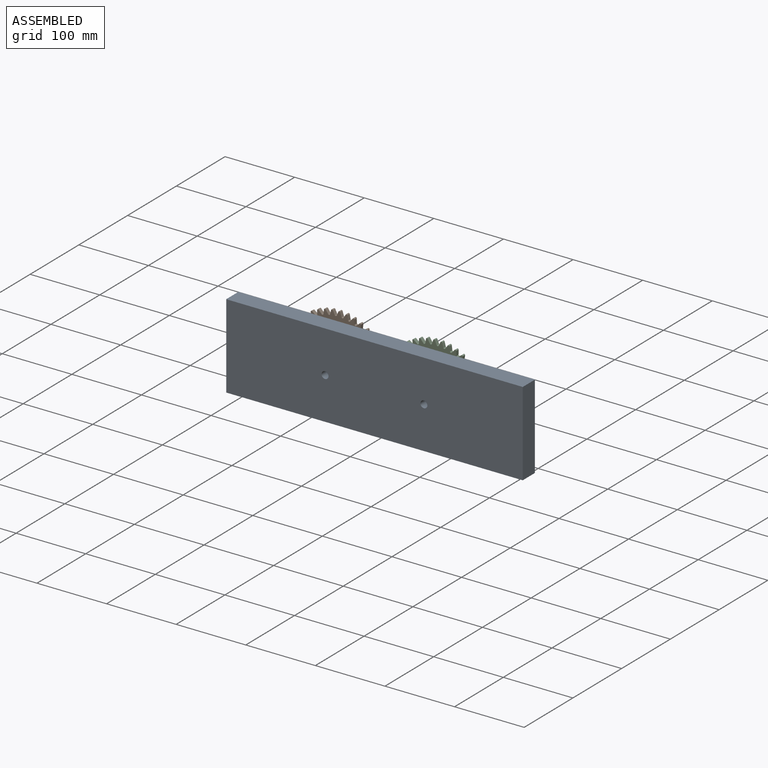
[diagram: assembled view]
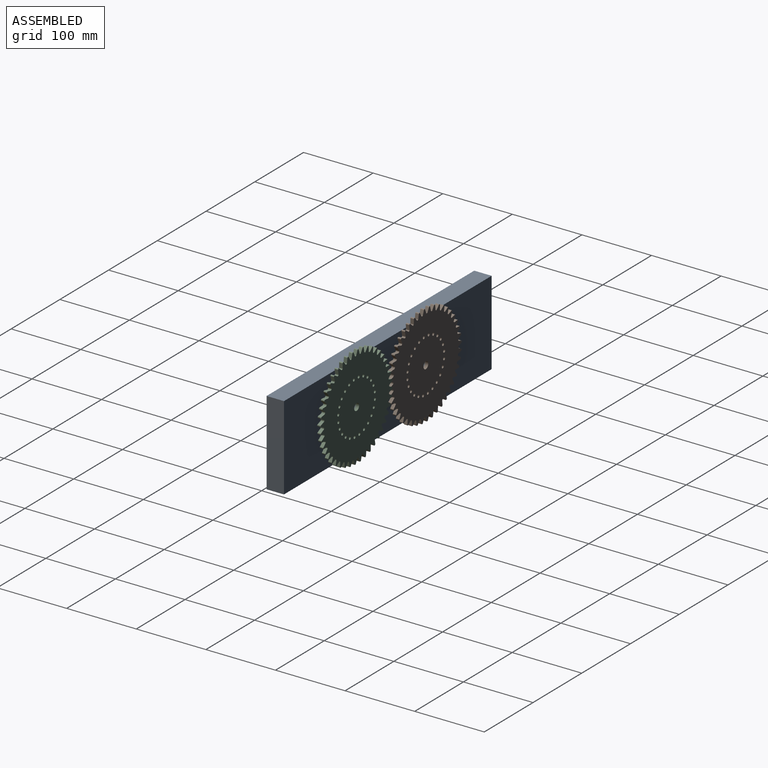
[diagram: assembled view, second angle]
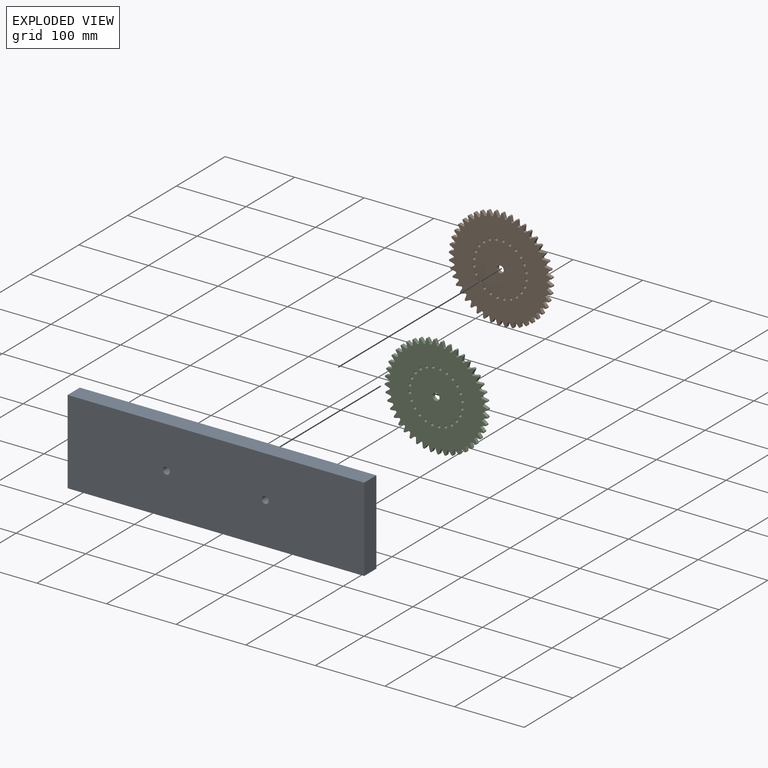
[diagram: exploded view]
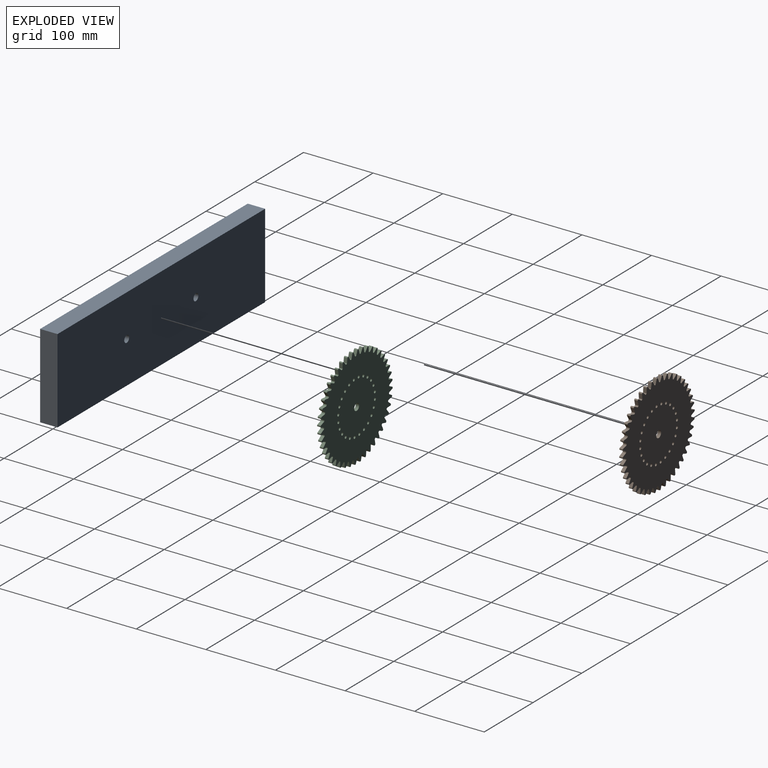
[diagram: exploded view, second angle]
ASSEMBLY  parts=3 mates=2
PART A: 8 faces, bbox 426.1x25x121.2 mm
  f0: plane 426.07x25mm, normal (0,0,1), area 10651.8mm2, adj f1,f5,f6,f7
  f1: plane 121.21x25mm, normal (-1,0,0), area 3030.3mm2, adj f0,f2,f6,f7
  f2: plane 426.07x25mm, normal (0,0,-1), area 10651.8mm2, adj f1,f5,f6,f7
  f3: cylinder r=5mm len=25mm, axis (0,1,0), area 785.4mm2, adj f6,f7
  f4: cylinder r=5mm len=25mm, axis (0,1,0), area 785.4mm2, adj f6,f7
  f5: plane 121.21x25mm, normal (1,0,0), area 3030.3mm2, adj f0,f2,f6,f7
  f6: plane 426.07x121.21mm, normal (0,-1,0), area 51487.1mm2, adj f0,f1,f2,f3,f4,f5
  f7: plane 426.07x121.21mm, normal (0,1,0), area 51487.1mm2, adj f0,f1,f2,f3,f4,f5
PART B: 379 faces, bbox 5x147.6x147.6 mm
  f0: cylinder r=1mm len=5mm, axis (1,0,0), area 6mm2, adj f1,f9,f90,f91
  f1: plane 147.55x147.55mm, normal (1,0,0), area 15120.7mm2, adj f0,f2,f3,f4,f5,f6,f7,f8
  f2: cylinder r=1mm len=5mm, axis (1,0,0), area 6mm2, adj f1,f3,f9,f353
  f3: plane 6.35x5mm, normal (0,0.13,-0.99), area 32mm2, adj f1,f2,f4,f9
  f4: cylinder r=1mm len=5mm, axis (-1,0,0), area 5.7mm2, adj f1,f3,f5,f9
  f5: cylinder r=66.82mm len=5mm, axis (1,0,0), area 3.9mm2, adj f1,f4,f6,f9
  f6: cylinder r=1mm len=5mm, axis (-1,0,0), area 5.7mm2, adj f1,f5,f7,f9
  f7: plane 5.42x5mm, normal (0,-0.85,0.53), area 32mm2, adj f1,f6,f8,f9
  f8: cylinder r=1mm len=5mm, axis (-1,0,0), area 6mm2, adj f1,f7,f9,f10
  f9: plane 147.55x147.55mm, normal (-1,0,0), area 15120.7mm2, adj f0,f2,f3,f4,f5,f6,f7,f8
  f10: cylinder r=73.94mm len=5mm, axis (1,0,0), area 2.9mm2, adj f1,f8,f9,f11
  f11: cylinder r=1mm len=5mm, axis (1,0,0), area 6mm2, adj f1,f9,f10,f12
  f12: plane 6.16x5mm, normal (0,0.27,-0.96), area 32mm2, adj f1,f9,f11,f13
  f13: cylinder r=1mm len=5mm, axis (-1,0,0), area 5.7mm2, adj f1,f9,f12,f14
  f14: cylinder r=66.82mm len=5mm, axis (1,0,0), area 3.9mm2, adj f1,f9,f13,f15
  f15: cylinder r=1mm len=5mm, axis (-1,0,0), area 5.7mm2, adj f1,f9,f14,f16
  f16: plane 5.85x5mm, normal (0,-0.91,0.41), area 32mm2, adj f1,f9,f15,f17
  f17: cylinder r=1mm len=5mm, axis (-1,0,0), area 6mm2, adj f1,f9,f16,f18
  f18: cylinder r=73.94mm len=5mm, axis (1,0,0), area 2.9mm2, adj f1,f9,f17,f19
  f19: cylinder r=1mm len=5mm, axis (1,0,0), area 6mm2, adj f1,f9,f18,f20
  f20: plane 5.85x5mm, normal (0,0.41,-0.91), area 32mm2, adj f1,f9,f19,f21
  f21: cylinder r=1mm len=5mm, axis (-1,0,0), area 5.7mm2, adj f1,f9,f20,f22
  f22: cylinder r=66.82mm len=5mm, axis (1,0,0), area 3.9mm2, adj f1,f9,f21,f23
  f23: cylinder r=1mm len=5mm, axis (-1,0,0), area 5.7mm2, adj f1,f9,f22,f24
  f24: plane 6.16x5mm, normal (0,-0.96,0.27), area 32mm2, adj f1,f9,f23,f25
  f25: cylinder r=1mm len=5mm, axis (-1,0,0), area 6mm2, adj f1,f9,f24,f26
  f26: cylinder r=73.94mm len=5mm, axis (1,0,0), area 2.9mm2, adj f1,f9,f25,f27
  f27: cylinder r=1mm len=5mm, axis (1,0,0), area 6mm2, adj f1,f9,f26,f28
  f28: plane 5.42x5mm, normal (0,0.53,-0.85), area 32mm2, adj f1,f9,f27,f29
  f29: cylinder r=1mm len=5mm, axis (-1,0,0), area 5.7mm2, adj f1,f9,f28,f30
  f30: cylinder r=66.82mm len=5mm, axis (1,0,0), area 3.9mm2, adj f1,f9,f29,f31
  f31: cylinder r=1mm len=5mm, axis (-1,0,0), area 5.7mm2, adj f1,f9,f30,f32
  f32: plane 6.35x5mm, normal (0,-0.99,0.13), area 32mm2, adj f1,f9,f31,f33
  f33: cylinder r=1mm len=5mm, axis (-1,0,0), area 6mm2, adj f1,f9,f32,f34
  f34: cylinder r=73.94mm len=5mm, axis (1,0,0), area 2.9mm2, adj f1,f9,f33,f35
  f35: cylinder r=1mm len=5mm, axis (1,0,0), area 6mm2, adj f1,f9,f34,f36
  f36: plane 5x4.88mm, normal (0,0.65,-0.76), area 32mm2, adj f1,f9,f35,f37
  f37: cylinder r=1mm len=5mm, axis (-1,0,0), area 5.7mm2, adj f1,f9,f36,f38
  f38: cylinder r=66.82mm len=5mm, axis (1,0,0), area 3.9mm2, adj f1,f9,f37,f39
  f39: cylinder r=1mm len=5mm, axis (-1,0,0), area 5.7mm2, adj f1,f9,f38,f40
  f40: plane 6.41x5mm, normal (0,-1,-0.01), area 32mm2, adj f1,f9,f39,f41
  f41: cylinder r=1mm len=5mm, axis (-1,0,0), area 6mm2, adj f1,f9,f40,f42
  f42: cylinder r=73.94mm len=5mm, axis (1,0,0), area 2.9mm2, adj f1,f9,f41,f43
  f43: cylinder r=1mm len=5mm, axis (1,0,0), area 6mm2, adj f1,f9,f42,f44
  f44: plane 5x4.81mm, normal (0,0.75,-0.66), area 32mm2, adj f1,f9,f43,f45
  f45: cylinder r=1mm len=5mm, axis (-1,0,0), area 5.7mm2, adj f1,f9,f44,f46
  f46: cylinder r=66.82mm len=5mm, axis (1,0,0), area 3.9mm2, adj f1,f9,f45,f47
  f47: cylinder r=1mm len=5mm, axis (-1,0,0), area 5.7mm2, adj f1,f9,f46,f48
  f48: plane 6.33x5mm, normal (0,-0.99,-0.15), area 32mm2, adj f1,f9,f47,f49
  f49: cylinder r=1mm len=5mm, axis (-1,0,0), area 6mm2, adj f1,f9,f48,f50
  f50: cylinder r=73.94mm len=5mm, axis (1,0,0), area 2.9mm2, adj f1,f9,f49,f51
  f51: cylinder r=1mm len=5mm, axis (1,0,0), area 6mm2, adj f1,f9,f50,f52
  f52: plane 5.36x5mm, normal (0,0.84,-0.55), area 32mm2, adj f1,f9,f51,f53
  f53: cylinder r=1mm len=5mm, axis (-1,0,0), area 5.7mm2, adj f1,f9,f52,f54
  f54: cylinder r=66.82mm len=5mm, axis (1,0,0), area 3.9mm2, adj f1,f9,f53,f55
  f55: cylinder r=1mm len=5mm, axis (-1,0,0), area 5.7mm2, adj f1,f9,f54,f56
  f56: plane 6.13x5mm, normal (0,-0.96,-0.29), area 32mm2, adj f1,f9,f55,f57
  f57: cylinder r=1mm len=5mm, axis (-1,0,0), area 6mm2, adj f1,f9,f56,f58
  f58: cylinder r=73.94mm len=5mm, axis (1,0,0), area 2.9mm2, adj f1,f9,f57,f59
  f59: cylinder r=1mm len=5mm, axis (1,0,0), area 6mm2, adj f1,f9,f58,f60
  f60: plane 5.8x5mm, normal (0,0.91,-0.42), area 32mm2, adj f1,f9,f59,f61
  f61: cylinder r=1mm len=5mm, axis (-1,0,0), area 5.7mm2, adj f1,f9,f60,f62
  f62: cylinder r=66.82mm len=5mm, axis (1,0,0), area 3.9mm2, adj f1,f9,f61,f63
  f63: cylinder r=1mm len=5mm, axis (-1,0,0), area 5.7mm2, adj f1,f9,f62,f64
  f64: plane 5.8x5mm, normal (0,-0.91,-0.42), area 32mm2, adj f1,f9,f63,f65
  f65: cylinder r=1mm len=5mm, axis (-1,0,0), area 6mm2, adj f1,f9,f64,f66
  f66: cylinder r=73.94mm len=5mm, axis (1,0,0), area 2.9mm2, adj f1,f9,f65,f67
  f67: cylinder r=1mm len=5mm, axis (1,0,0), area 6mm2, adj f1,f9,f66,f68
  f68: plane 6.13x5mm, normal (0,0.96,-0.29), area 32mm2, adj f1,f9,f67,f69
  f69: cylinder r=1mm len=5mm, axis (-1,0,0), area 5.7mm2, adj f1,f9,f68,f70
  f70: cylinder r=66.82mm len=5mm, axis (1,0,0), area 3.9mm2, adj f1,f9,f69,f71
  f71: cylinder r=1mm len=5mm, axis (-1,0,0), area 5.7mm2, adj f1,f9,f70,f72
  f72: plane 5.36x5mm, normal (0,-0.84,-0.55), area 32mm2, adj f1,f9,f71,f73
  f73: cylinder r=1mm len=5mm, axis (-1,0,0), area 6mm2, adj f1,f9,f72,f74
  f74: cylinder r=73.94mm len=5mm, axis (1,0,0), area 2.9mm2, adj f1,f9,f73,f75
  f75: cylinder r=1mm len=5mm, axis (1,0,0), area 6mm2, adj f1,f9,f74,f76
  f76: plane 6.33x5mm, normal (0,0.99,-0.15), area 32mm2, adj f1,f9,f75,f77
  f77: cylinder r=1mm len=5mm, axis (-1,0,0), area 5.7mm2, adj f1,f9,f76,f78
  f78: cylinder r=66.82mm len=5mm, axis (1,0,0), area 3.9mm2, adj f1,f9,f77,f79
  f79: cylinder r=1mm len=5mm, axis (-1,0,0), area 5.7mm2, adj f1,f9,f78,f80
  f80: plane 5x4.81mm, normal (0,-0.75,-0.66), area 32mm2, adj f1,f9,f79,f81
  f81: cylinder r=1mm len=5mm, axis (-1,0,0), area 6mm2, adj f1,f9,f80,f82
  f82: cylinder r=73.94mm len=5mm, axis (1,0,0), area 2.9mm2, adj f1,f9,f81,f83
  f83: cylinder r=1mm len=5mm, axis (1,0,0), area 6mm2, adj f1,f9,f82,f84
  f84: plane 6.41x5mm, normal (0,1,-0.01), area 32mm2, adj f1,f9,f83,f85
  f85: cylinder r=1mm len=5mm, axis (-1,0,0), area 5.7mm2, adj f1,f9,f84,f86
  f86: cylinder r=66.82mm len=5mm, axis (1,0,0), area 3.9mm2, adj f1,f9,f85,f87
  f87: cylinder r=1mm len=5mm, axis (-1,0,0), area 5.7mm2, adj f1,f9,f86,f88
  f88: plane 5x4.88mm, normal (0,-0.65,-0.76), area 32mm2, adj f1,f9,f87,f89
  f89: cylinder r=1mm len=5mm, axis (-1,0,0), area 6mm2, adj f1,f9,f88,f90
  f90: cylinder r=73.94mm len=5mm, axis (1,0,0), area 2.9mm2, adj f0,f1,f9,f89
  f91: plane 6.35x5mm, normal (0,0.99,0.13), area 32mm2, adj f0,f1,f9,f92
  f92: cylinder r=1mm len=5mm, axis (-1,0,0), area 5.7mm2, adj f1,f9,f91,f93
  f93: cylinder r=66.82mm len=5mm, axis (1,0,0), area 3.9mm2, adj f1,f9,f92,f94
  f94: cylinder r=1mm len=5mm, axis (-1,0,0), area 5.7mm2, adj f1,f9,f93,f95
  f95: plane 5.42x5mm, normal (0,-0.53,-0.85), area 32mm2, adj f1,f9,f94,f96
  f96: cylinder r=1mm len=5mm, axis (-1,0,0), area 6mm2, adj f1,f9,f95,f97
  f97: cylinder r=73.94mm len=5mm, axis (1,0,0), area 2.9mm2, adj f1,f9,f96,f98
  f98: cylinder r=1mm len=5mm, axis (1,0,0), area 6mm2, adj f1,f9,f97,f99
  f99: plane 6.16x5mm, normal (0,0.96,0.27), area 32mm2, adj f1,f9,f98,f100
  f100: cylinder r=1mm len=5mm, axis (-1,0,0), area 5.7mm2, adj f1,f9,f99,f101
  f101: cylinder r=66.82mm len=5mm, axis (1,0,0), area 3.9mm2, adj f1,f9,f100,f102
  f102: cylinder r=1mm len=5mm, axis (-1,0,0), area 5.7mm2, adj f1,f9,f101,f103
  f103: plane 5.85x5mm, normal (0,-0.41,-0.91), area 32mm2, adj f1,f9,f102,f104
  f104: cylinder r=1mm len=5mm, axis (-1,0,0), area 6mm2, adj f1,f9,f103,f105
  f105: cylinder r=73.94mm len=5mm, axis (1,0,0), area 2.9mm2, adj f1,f9,f104,f106
  f106: cylinder r=1mm len=5mm, axis (1,0,0), area 6mm2, adj f1,f9,f105,f107
  f107: plane 5.85x5mm, normal (0,0.91,0.41), area 32mm2, adj f1,f9,f106,f108
  f108: cylinder r=1mm len=5mm, axis (-1,0,0), area 5.7mm2, adj f1,f9,f107,f109
  f109: cylinder r=66.82mm len=5mm, axis (1,0,0), area 3.9mm2, adj f1,f9,f108,f110
  f110: cylinder r=1mm len=5mm, axis (-1,0,0), area 5.7mm2, adj f1,f9,f109,f111
  f111: plane 6.16x5mm, normal (0,-0.27,-0.96), area 32mm2, adj f1,f9,f110,f112
  f112: cylinder r=1mm len=5mm, axis (-1,0,0), area 6mm2, adj f1,f9,f111,f113
  f113: cylinder r=73.94mm len=5mm, axis (1,0,0), area 2.9mm2, adj f1,f9,f112,f114
  f114: cylinder r=1mm len=5mm, axis (1,0,0), area 6mm2, adj f1,f9,f113,f115
  f115: plane 5.42x5mm, normal (0,0.85,0.53), area 32mm2, adj f1,f9,f114,f116
  f116: cylinder r=1mm len=5mm, axis (-1,0,0), area 5.7mm2, adj f1,f9,f115,f117
  f117: cylinder r=66.82mm len=5mm, axis (1,0,0), area 3.9mm2, adj f1,f9,f116,f118
  f118: cylinder r=1mm len=5mm, axis (-1,0,0), area 5.7mm2, adj f1,f9,f117,f119
  f119: plane 6.35x5mm, normal (0,-0.13,-0.99), area 32mm2, adj f1,f9,f118,f120
  f120: cylinder r=1mm len=5mm, axis (-1,0,0), area 6mm2, adj f1,f9,f119,f121
  f121: cylinder r=73.94mm len=5mm, axis (1,0,0), area 2.9mm2, adj f1,f9,f120,f122
  f122: cylinder r=1mm len=5mm, axis (1,0,0), area 6mm2, adj f1,f9,f121,f123
  f123: plane 5x4.88mm, normal (0,0.76,0.65), area 32mm2, adj f1,f9,f122,f124
  f124: cylinder r=1mm len=5mm, axis (-1,0,0), area 5.7mm2, adj f1,f9,f123,f125
  f125: cylinder r=66.82mm len=5mm, axis (1,0,0), area 3.9mm2, adj f1,f9,f124,f126
  f126: cylinder r=1mm len=5mm, axis (-1,0,0), area 5.7mm2, adj f1,f9,f125,f127
  f127: plane 6.41x5mm, normal (0,0.01,-1), area 32mm2, adj f1,f9,f126,f128
  f128: cylinder r=1mm len=5mm, axis (-1,0,0), area 6mm2, adj f1,f9,f127,f129
  f129: cylinder r=73.94mm len=5mm, axis (1,0,0), area 2.9mm2, adj f1,f9,f128,f130
  f130: cylinder r=1mm len=5mm, axis (1,0,0), area 6mm2, adj f1,f9,f129,f131
  f131: plane 5x4.81mm, normal (0,0.66,0.75), area 32mm2, adj f1,f9,f130,f132
  f132: cylinder r=1mm len=5mm, axis (-1,0,0), area 5.7mm2, adj f1,f9,f131,f133
  f133: cylinder r=66.82mm len=5mm, axis (1,0,0), area 3.9mm2, adj f1,f9,f132,f134
  f134: cylinder r=1mm len=5mm, axis (-1,0,0), area 5.7mm2, adj f1,f9,f133,f135
  f135: plane 6.33x5mm, normal (0,0.15,-0.99), area 32mm2, adj f1,f9,f134,f136
  f136: cylinder r=1mm len=5mm, axis (-1,0,0), area 6mm2, adj f1,f9,f135,f137
  f137: cylinder r=73.94mm len=5mm, axis (1,0,0), area 2.9mm2, adj f1,f9,f136,f138
  f138: cylinder r=1mm len=5mm, axis (1,0,0), area 6mm2, adj f1,f9,f137,f139
  f139: plane 5.36x5mm, normal (0,0.55,0.84), area 32mm2, adj f1,f9,f138,f140
  f140: cylinder r=1mm len=5mm, axis (-1,0,0), area 5.7mm2, adj f1,f9,f139,f141
  f141: cylinder r=66.82mm len=5mm, axis (1,0,0), area 3.9mm2, adj f1,f9,f140,f142
  f142: cylinder r=1mm len=5mm, axis (-1,0,0), area 5.7mm2, adj f1,f9,f141,f143
  f143: plane 6.13x5mm, normal (0,0.29,-0.96), area 32mm2, adj f1,f9,f142,f144
  f144: cylinder r=1mm len=5mm, axis (-1,0,0), area 6mm2, adj f1,f9,f143,f145
  f145: cylinder r=73.94mm len=5mm, axis (1,0,0), area 2.9mm2, adj f1,f9,f144,f146
  f146: cylinder r=1mm len=5mm, axis (1,0,0), area 6mm2, adj f1,f9,f145,f147
  f147: plane 5.8x5mm, normal (0,0.42,0.91), area 32mm2, adj f1,f9,f146,f148
  f148: cylinder r=1mm len=5mm, axis (-1,0,0), area 5.7mm2, adj f1,f9,f147,f149
  f149: cylinder r=66.82mm len=5mm, axis (1,0,0), area 3.9mm2, adj f1,f9,f148,f150
  f150: cylinder r=1mm len=5mm, axis (-1,0,0), area 5.7mm2, adj f1,f9,f149,f151
  f151: plane 5.8x5mm, normal (0,0.42,-0.91), area 32mm2, adj f1,f9,f150,f152
  f152: cylinder r=1mm len=5mm, axis (-1,0,0), area 6mm2, adj f1,f9,f151,f153
  f153: cylinder r=73.94mm len=5mm, axis (1,0,0), area 2.9mm2, adj f1,f9,f152,f154
  f154: cylinder r=1mm len=5mm, axis (1,0,0), area 6mm2, adj f1,f9,f153,f155
  f155: plane 6.13x5mm, normal (0,0.29,0.96), area 32mm2, adj f1,f9,f154,f156
  f156: cylinder r=1mm len=5mm, axis (-1,0,0), area 5.7mm2, adj f1,f9,f155,f157
  f157: cylinder r=66.82mm len=5mm, axis (1,0,0), area 3.9mm2, adj f1,f9,f156,f158
  f158: cylinder r=1mm len=5mm, axis (-1,0,0), area 5.7mm2, adj f1,f9,f157,f159
  f159: plane 5.36x5mm, normal (0,0.55,-0.84), area 32mm2, adj f1,f9,f158,f160
  f160: cylinder r=1mm len=5mm, axis (-1,0,0), area 6mm2, adj f1,f9,f159,f161
  f161: cylinder r=73.94mm len=5mm, axis (1,0,0), area 2.9mm2, adj f1,f9,f160,f162
  f162: cylinder r=1mm len=5mm, axis (1,0,0), area 6mm2, adj f1,f9,f161,f163
  f163: plane 6.33x5mm, normal (0,0.15,0.99), area 32mm2, adj f1,f9,f162,f164
  f164: cylinder r=1mm len=5mm, axis (-1,0,0), area 5.7mm2, adj f1,f9,f163,f165
  f165: cylinder r=66.82mm len=5mm, axis (1,0,0), area 3.9mm2, adj f1,f9,f164,f166
  f166: cylinder r=1mm len=5mm, axis (-1,0,0), area 5.7mm2, adj f1,f9,f165,f167
  f167: plane 5x4.81mm, normal (0,0.66,-0.75), area 32mm2, adj f1,f9,f166,f168
  f168: cylinder r=1mm len=5mm, axis (-1,0,0), area 6mm2, adj f1,f9,f167,f169
  f169: cylinder r=73.94mm len=5mm, axis (1,0,0), area 2.9mm2, adj f1,f9,f168,f170
  f170: cylinder r=1mm len=5mm, axis (1,0,0), area 6mm2, adj f1,f9,f169,f171
  f171: plane 6.41x5mm, normal (0,0.01,1), area 32mm2, adj f1,f9,f170,f172
  f172: cylinder r=1mm len=5mm, axis (-1,0,0), area 5.7mm2, adj f1,f9,f171,f173
  f173: cylinder r=66.82mm len=5mm, axis (1,0,0), area 3.9mm2, adj f1,f9,f172,f174
  f174: cylinder r=1mm len=5mm, axis (-1,0,0), area 5.7mm2, adj f1,f9,f173,f175
  f175: plane 5x4.88mm, normal (0,0.76,-0.65), area 32mm2, adj f1,f9,f174,f176
  f176: cylinder r=1mm len=5mm, axis (-1,0,0), area 6mm2, adj f1,f9,f175,f177
  f177: cylinder r=73.94mm len=5mm, axis (1,0,0), area 2.9mm2, adj f1,f9,f176,f178
  f178: cylinder r=1mm len=5mm, axis (1,0,0), area 6mm2, adj f1,f9,f177,f179
  f179: plane 6.35x5mm, normal (0,-0.13,0.99), area 32mm2, adj f1,f9,f178,f180
  f180: cylinder r=1mm len=5mm, axis (-1,0,0), area 5.7mm2, adj f1,f9,f179,f181
  f181: cylinder r=66.82mm len=5mm, axis (1,0,0), area 3.9mm2, adj f1,f9,f180,f182
  f182: cylinder r=1mm len=5mm, axis (-1,0,0), area 5.7mm2, adj f1,f9,f181,f183
  f183: plane 5.42x5mm, normal (0,0.85,-0.53), area 32mm2, adj f1,f9,f182,f184
  f184: cylinder r=1mm len=5mm, axis (-1,0,0), area 6mm2, adj f1,f9,f183,f185
  f185: cylinder r=73.94mm len=5mm, axis (1,0,0), area 2.9mm2, adj f1,f9,f184,f186
  f186: cylinder r=1mm len=5mm, axis (1,0,0), area 6mm2, adj f1,f9,f185,f187
  f187: plane 6.16x5mm, normal (0,-0.27,0.96), area 32mm2, adj f1,f9,f186,f188
  f188: cylinder r=1mm len=5mm, axis (-1,0,0), area 5.7mm2, adj f1,f9,f187,f189
  f189: cylinder r=66.82mm len=5mm, axis (1,0,0), area 3.9mm2, adj f1,f9,f188,f190
  f190: cylinder r=1mm len=5mm, axis (-1,0,0), area 5.7mm2, adj f1,f9,f189,f191
  f191: plane 5.85x5mm, normal (0,0.91,-0.41), area 32mm2, adj f1,f9,f190,f192
  f192: cylinder r=1mm len=5mm, axis (-1,0,0), area 6mm2, adj f1,f9,f191,f193
  f193: cylinder r=73.94mm len=5mm, axis (1,0,0), area 2.9mm2, adj f1,f9,f192,f194
  f194: cylinder r=1mm len=5mm, axis (1,0,0), area 6mm2, adj f1,f9,f193,f195
  f195: plane 5.85x5mm, normal (0,-0.41,0.91), area 32mm2, adj f1,f9,f194,f196
  f196: cylinder r=1mm len=5mm, axis (-1,0,0), area 5.7mm2, adj f1,f9,f195,f197
  f197: cylinder r=66.82mm len=5mm, axis (1,0,0), area 3.9mm2, adj f1,f9,f196,f198
  f198: cylinder r=1mm len=5mm, axis (-1,0,0), area 5.7mm2, adj f1,f9,f197,f199
  f199: plane 6.16x5mm, normal (0,0.96,-0.27), area 32mm2, adj f1,f9,f198,f200
  f200: cylinder r=1mm len=5mm, axis (-1,0,0), area 6mm2, adj f1,f9,f199,f201
  f201: cylinder r=73.94mm len=5mm, axis (1,0,0), area 2.9mm2, adj f1,f9,f200,f202
  f202: cylinder r=1mm len=5mm, axis (1,0,0), area 6mm2, adj f1,f9,f201,f203
  f203: plane 5.42x5mm, normal (0,-0.53,0.85), area 32mm2, adj f1,f9,f202,f204
  f204: cylinder r=1mm len=5mm, axis (-1,0,0), area 5.7mm2, adj f1,f9,f203,f205
  f205: cylinder r=66.82mm len=5mm, axis (1,0,0), area 3.9mm2, adj f1,f9,f204,f206
  f206: cylinder r=1mm len=5mm, axis (-1,0,0), area 5.7mm2, adj f1,f9,f205,f207
  f207: plane 6.35x5mm, normal (0,0.99,-0.13), area 32mm2, adj f1,f9,f206,f208
  f208: cylinder r=1mm len=5mm, axis (-1,0,0), area 6mm2, adj f1,f9,f207,f209
  f209: cylinder r=73.94mm len=5mm, axis (1,0,0), area 2.9mm2, adj f1,f9,f208,f210
  f210: cylinder r=1mm len=5mm, axis (1,0,0), area 6mm2, adj f1,f9,f209,f211
  f211: plane 5x4.88mm, normal (0,-0.65,0.76), area 32mm2, adj f1,f9,f210,f212
  f212: cylinder r=1mm len=5mm, axis (-1,0,0), area 5.7mm2, adj f1,f9,f211,f213
  f213: cylinder r=66.82mm len=5mm, axis (1,0,0), area 3.9mm2, adj f1,f9,f212,f214
  f214: cylinder r=1mm len=5mm, axis (-1,0,0), area 5.7mm2, adj f1,f9,f213,f215
  f215: plane 6.41x5mm, normal (0,1,0.01), area 32mm2, adj f1,f9,f214,f216
  f216: cylinder r=1mm len=5mm, axis (-1,0,0), area 6mm2, adj f1,f9,f215,f217
  f217: cylinder r=73.94mm len=5mm, axis (1,0,0), area 2.9mm2, adj f1,f9,f216,f218
  f218: cylinder r=1mm len=5mm, axis (1,0,0), area 6mm2, adj f1,f9,f217,f219
  f219: plane 5x4.81mm, normal (0,-0.75,0.66), area 32mm2, adj f1,f9,f218,f220
  f220: cylinder r=1mm len=5mm, axis (-1,0,0), area 5.7mm2, adj f1,f9,f219,f221
  f221: cylinder r=66.82mm len=5mm, axis (1,0,0), area 3.9mm2, adj f1,f9,f220,f222
  f222: cylinder r=1mm len=5mm, axis (-1,0,0), area 5.7mm2, adj f1,f9,f221,f223
  f223: plane 6.33x5mm, normal (0,0.99,0.15), area 32mm2, adj f1,f9,f222,f224
  f224: cylinder r=1mm len=5mm, axis (-1,0,0), area 6mm2, adj f1,f9,f223,f225
  f225: cylinder r=73.94mm len=5mm, axis (1,0,0), area 2.9mm2, adj f1,f9,f224,f226
  f226: cylinder r=1mm len=5mm, axis (1,0,0), area 6mm2, adj f1,f9,f225,f227
  f227: plane 5.36x5mm, normal (0,-0.84,0.55), area 32mm2, adj f1,f9,f226,f228
  f228: cylinder r=1mm len=5mm, axis (-1,0,0), area 5.7mm2, adj f1,f9,f227,f229
  f229: cylinder r=66.82mm len=5mm, axis (1,0,0), area 3.9mm2, adj f1,f9,f228,f230
  f230: cylinder r=1mm len=5mm, axis (-1,0,0), area 5.7mm2, adj f1,f9,f229,f231
  f231: plane 6.13x5mm, normal (0,0.96,0.29), area 32mm2, adj f1,f9,f230,f232
  f232: cylinder r=1mm len=5mm, axis (-1,0,0), area 6mm2, adj f1,f9,f231,f233
  f233: cylinder r=73.94mm len=5mm, axis (1,0,0), area 2.9mm2, adj f1,f9,f232,f234
  f234: cylinder r=1mm len=5mm, axis (1,0,0), area 6mm2, adj f1,f9,f233,f235
  f235: plane 5.8x5mm, normal (0,-0.91,0.42), area 32mm2, adj f1,f9,f234,f236
  f236: cylinder r=1mm len=5mm, axis (-1,0,0), area 5.7mm2, adj f1,f9,f235,f237
  f237: cylinder r=66.82mm len=5mm, axis (1,0,0), area 3.9mm2, adj f1,f9,f236,f238
  f238: cylinder r=1mm len=5mm, axis (-1,0,0), area 5.7mm2, adj f1,f9,f237,f239
  f239: plane 5.8x5mm, normal (0,0.91,0.42), area 32mm2, adj f1,f9,f238,f240
  f240: cylinder r=1mm len=5mm, axis (-1,0,0), area 6mm2, adj f1,f9,f239,f241
  f241: cylinder r=73.94mm len=5mm, axis (1,0,0), area 2.9mm2, adj f1,f9,f240,f242
  f242: cylinder r=1mm len=5mm, axis (1,0,0), area 6mm2, adj f1,f9,f241,f243
  f243: plane 6.13x5mm, normal (0,-0.96,0.29), area 32mm2, adj f1,f9,f242,f244
  f244: cylinder r=1mm len=5mm, axis (-1,0,0), area 5.7mm2, adj f1,f9,f243,f245
  f245: cylinder r=66.82mm len=5mm, axis (1,0,0), area 3.9mm2, adj f1,f9,f244,f246
  f246: cylinder r=1mm len=5mm, axis (-1,0,0), area 5.7mm2, adj f1,f9,f245,f247
  f247: plane 5.36x5mm, normal (0,0.84,0.55), area 32mm2, adj f1,f9,f246,f248
  f248: cylinder r=1mm len=5mm, axis (-1,0,0), area 6mm2, adj f1,f9,f247,f249
  f249: cylinder r=73.94mm len=5mm, axis (1,0,0), area 2.9mm2, adj f1,f9,f248,f250
  f250: cylinder r=1mm len=5mm, axis (1,0,0), area 6mm2, adj f1,f9,f249,f251
  f251: plane 6.33x5mm, normal (0,-0.99,0.15), area 32mm2, adj f1,f9,f250,f252
  f252: cylinder r=1mm len=5mm, axis (-1,0,0), area 5.7mm2, adj f1,f9,f251,f253
  f253: cylinder r=66.82mm len=5mm, axis (1,0,0), area 3.9mm2, adj f1,f9,f252,f254
  f254: cylinder r=1mm len=5mm, axis (-1,0,0), area 5.7mm2, adj f1,f9,f253,f255
  f255: plane 5x4.81mm, normal (0,0.75,0.66), area 32mm2, adj f1,f9,f254,f256
  f256: cylinder r=1mm len=5mm, axis (-1,0,0), area 6mm2, adj f1,f9,f255,f257
  f257: cylinder r=73.94mm len=5mm, axis (1,0,0), area 2.9mm2, adj f1,f9,f256,f258
  f258: cylinder r=1mm len=5mm, axis (1,0,0), area 6mm2, adj f1,f9,f257,f259
  f259: plane 6.41x5mm, normal (0,-1,0.01), area 32mm2, adj f1,f9,f258,f260
  f260: cylinder r=1mm len=5mm, axis (-1,0,0), area 5.7mm2, adj f1,f9,f259,f261
  f261: cylinder r=66.82mm len=5mm, axis (1,0,0), area 3.9mm2, adj f1,f9,f260,f262
  f262: cylinder r=1mm len=5mm, axis (-1,0,0), area 5.7mm2, adj f1,f9,f261,f263
  f263: plane 5x4.88mm, normal (0,0.65,0.76), area 32mm2, adj f1,f9,f262,f264
  f264: cylinder r=1mm len=5mm, axis (-1,0,0), area 6mm2, adj f1,f9,f263,f265
  f265: cylinder r=73.94mm len=5mm, axis (1,0,0), area 2.9mm2, adj f1,f9,f264,f266
  f266: cylinder r=1mm len=5mm, axis (1,0,0), area 6mm2, adj f1,f9,f265,f267
  f267: plane 6.35x5mm, normal (0,-0.99,-0.13), area 32mm2, adj f1,f9,f266,f268
  f268: cylinder r=1mm len=5mm, axis (-1,0,0), area 5.7mm2, adj f1,f9,f267,f269
  f269: cylinder r=66.82mm len=5mm, axis (1,0,0), area 3.9mm2, adj f1,f9,f268,f270
  f270: cylinder r=1mm len=5mm, axis (-1,0,0), area 5.7mm2, adj f1,f9,f269,f271
  f271: plane 5.42x5mm, normal (0,0.53,0.85), area 32mm2, adj f1,f9,f270,f272
  f272: cylinder r=1mm len=5mm, axis (-1,0,0), area 6mm2, adj f1,f9,f271,f273
  f273: cylinder r=73.94mm len=5mm, axis (1,0,0), area 2.9mm2, adj f1,f9,f272,f274
  f274: cylinder r=1mm len=5mm, axis (1,0,0), area 6mm2, adj f1,f9,f273,f275
  f275: plane 6.16x5mm, normal (0,-0.96,-0.27), area 32mm2, adj f1,f9,f274,f276
  f276: cylinder r=1mm len=5mm, axis (-1,0,0), area 5.7mm2, adj f1,f9,f275,f277
  f277: cylinder r=66.82mm len=5mm, axis (1,0,0), area 3.9mm2, adj f1,f9,f276,f278
  f278: cylinder r=1mm len=5mm, axis (-1,0,0), area 5.7mm2, adj f1,f9,f277,f279
  f279: plane 5.85x5mm, normal (0,0.41,0.91), area 32mm2, adj f1,f9,f278,f280
  f280: cylinder r=1mm len=5mm, axis (-1,0,0), area 6mm2, adj f1,f9,f279,f281
  f281: cylinder r=73.94mm len=5mm, axis (1,0,0), area 2.9mm2, adj f1,f9,f280,f282
  f282: cylinder r=1mm len=5mm, axis (1,0,0), area 6mm2, adj f1,f9,f281,f283
  f283: plane 5.85x5mm, normal (0,-0.91,-0.41), area 32mm2, adj f1,f9,f282,f284
  f284: cylinder r=1mm len=5mm, axis (-1,0,0), area 5.7mm2, adj f1,f9,f283,f285
  f285: cylinder r=66.82mm len=5mm, axis (1,0,0), area 3.9mm2, adj f1,f9,f284,f286
  f286: cylinder r=1mm len=5mm, axis (-1,0,0), area 5.7mm2, adj f1,f9,f285,f287
  f287: plane 6.16x5mm, normal (0,0.27,0.96), area 32mm2, adj f1,f9,f286,f288
  f288: cylinder r=1mm len=5mm, axis (-1,0,0), area 6mm2, adj f1,f9,f287,f289
  f289: cylinder r=73.94mm len=5mm, axis (1,0,0), area 2.9mm2, adj f1,f9,f288,f290
  f290: cylinder r=1mm len=5mm, axis (1,0,0), area 6mm2, adj f1,f9,f289,f291
  f291: plane 5.42x5mm, normal (0,-0.85,-0.53), area 32mm2, adj f1,f9,f290,f292
  f292: cylinder r=1mm len=5mm, axis (-1,0,0), area 5.7mm2, adj f1,f9,f291,f293
  f293: cylinder r=66.82mm len=5mm, axis (1,0,0), area 3.9mm2, adj f1,f9,f292,f294
  f294: cylinder r=1mm len=5mm, axis (-1,0,0), area 5.7mm2, adj f1,f9,f293,f295
  f295: plane 6.35x5mm, normal (0,0.13,0.99), area 32mm2, adj f1,f9,f294,f296
  f296: cylinder r=1mm len=5mm, axis (-1,0,0), area 6mm2, adj f1,f9,f295,f297
  f297: cylinder r=73.94mm len=5mm, axis (1,0,0), area 2.9mm2, adj f1,f9,f296,f298
  f298: cylinder r=1mm len=5mm, axis (1,0,0), area 6mm2, adj f1,f9,f297,f299
  f299: plane 5x4.88mm, normal (0,-0.76,-0.65), area 32mm2, adj f1,f9,f298,f300
  f300: cylinder r=1mm len=5mm, axis (-1,0,0), area 5.7mm2, adj f1,f9,f299,f301
  f301: cylinder r=66.82mm len=5mm, axis (1,0,0), area 3.9mm2, adj f1,f9,f300,f302
  f302: cylinder r=1mm len=5mm, axis (-1,0,0), area 5.7mm2, adj f1,f9,f301,f303
  f303: plane 6.41x5mm, normal (0,-0.01,1), area 32mm2, adj f1,f9,f302,f304
  f304: cylinder r=1mm len=5mm, axis (-1,0,0), area 6mm2, adj f1,f9,f303,f305
  f305: cylinder r=73.94mm len=5mm, axis (1,0,0), area 2.9mm2, adj f1,f9,f304,f306
  f306: cylinder r=1mm len=5mm, axis (1,0,0), area 6mm2, adj f1,f9,f305,f307
  f307: plane 5x4.81mm, normal (0,-0.66,-0.75), area 32mm2, adj f1,f9,f306,f308
  f308: cylinder r=1mm len=5mm, axis (-1,0,0), area 5.7mm2, adj f1,f9,f307,f309
  f309: cylinder r=66.82mm len=5mm, axis (1,0,0), area 3.9mm2, adj f1,f9,f308,f310
  f310: cylinder r=1mm len=5mm, axis (-1,0,0), area 5.7mm2, adj f1,f9,f309,f311
  f311: plane 6.33x5mm, normal (0,-0.15,0.99), area 32mm2, adj f1,f9,f310,f312
  f312: cylinder r=1mm len=5mm, axis (-1,0,0), area 6mm2, adj f1,f9,f311,f313
  f313: cylinder r=73.94mm len=5mm, axis (1,0,0), area 2.9mm2, adj f1,f9,f312,f314
  f314: cylinder r=1mm len=5mm, axis (1,0,0), area 6mm2, adj f1,f9,f313,f315
  f315: plane 5.36x5mm, normal (0,-0.55,-0.84), area 32mm2, adj f1,f9,f314,f316
  f316: cylinder r=1mm len=5mm, axis (-1,0,0), area 5.7mm2, adj f1,f9,f315,f317
  f317: cylinder r=66.82mm len=5mm, axis (1,0,0), area 3.9mm2, adj f1,f9,f316,f318
  f318: cylinder r=1mm len=5mm, axis (-1,0,0), area 5.7mm2, adj f1,f9,f317,f319
  f319: plane 6.13x5mm, normal (0,-0.29,0.96), area 32mm2, adj f1,f9,f318,f320
  f320: cylinder r=1mm len=5mm, axis (-1,0,0), area 6mm2, adj f1,f9,f319,f321
  f321: cylinder r=73.94mm len=5mm, axis (1,0,0), area 2.9mm2, adj f1,f9,f320,f322
  f322: cylinder r=1mm len=5mm, axis (1,0,0), area 6mm2, adj f1,f9,f321,f323
  f323: plane 5.8x5mm, normal (0,-0.42,-0.91), area 32mm2, adj f1,f9,f322,f324
  f324: cylinder r=1mm len=5mm, axis (-1,0,0), area 5.7mm2, adj f1,f9,f323,f325
  f325: cylinder r=66.82mm len=5mm, axis (1,0,0), area 3.9mm2, adj f1,f9,f324,f326
  f326: cylinder r=1mm len=5mm, axis (-1,0,0), area 5.7mm2, adj f1,f9,f325,f327
  f327: plane 5.8x5mm, normal (0,-0.42,0.91), area 32mm2, adj f1,f9,f326,f328
  f328: cylinder r=1mm len=5mm, axis (-1,0,0), area 6mm2, adj f1,f9,f327,f329
  f329: cylinder r=73.94mm len=5mm, axis (1,0,0), area 2.9mm2, adj f1,f9,f328,f330
  f330: cylinder r=1mm len=5mm, axis (1,0,0), area 6mm2, adj f1,f9,f329,f331
  f331: plane 6.13x5mm, normal (0,-0.29,-0.96), area 32mm2, adj f1,f9,f330,f332
  f332: cylinder r=1mm len=5mm, axis (-1,0,0), area 5.7mm2, adj f1,f9,f331,f333
  f333: cylinder r=66.82mm len=5mm, axis (1,0,0), area 3.9mm2, adj f1,f9,f332,f334
  f334: cylinder r=1mm len=5mm, axis (-1,0,0), area 5.7mm2, adj f1,f9,f333,f335
  f335: plane 5.36x5mm, normal (0,-0.55,0.84), area 32mm2, adj f1,f9,f334,f336
  f336: cylinder r=1mm len=5mm, axis (-1,0,0), area 6mm2, adj f1,f9,f335,f337
  f337: cylinder r=73.94mm len=5mm, axis (1,0,0), area 2.9mm2, adj f1,f9,f336,f338
  f338: cylinder r=1mm len=5mm, axis (1,0,0), area 6mm2, adj f1,f9,f337,f339
  f339: plane 6.33x5mm, normal (0,-0.15,-0.99), area 32mm2, adj f1,f9,f338,f340
  f340: cylinder r=1mm len=5mm, axis (-1,0,0), area 5.7mm2, adj f1,f9,f339,f341
  f341: cylinder r=66.82mm len=5mm, axis (1,0,0), area 3.9mm2, adj f1,f9,f340,f342
  f342: cylinder r=1mm len=5mm, axis (-1,0,0), area 5.7mm2, adj f1,f9,f341,f343
  f343: plane 5x4.81mm, normal (0,-0.66,0.75), area 32mm2, adj f1,f9,f342,f344
  f344: cylinder r=1mm len=5mm, axis (-1,0,0), area 6mm2, adj f1,f9,f343,f345
  f345: cylinder r=73.94mm len=5mm, axis (1,0,0), area 2.9mm2, adj f1,f9,f344,f346
  f346: cylinder r=1mm len=5mm, axis (1,0,0), area 6mm2, adj f1,f9,f345,f347
  f347: plane 6.41x5mm, normal (0,-0.01,-1), area 32mm2, adj f1,f9,f346,f348
  f348: cylinder r=1mm len=5mm, axis (-1,0,0), area 5.7mm2, adj f1,f9,f347,f349
  f349: cylinder r=66.82mm len=5mm, axis (1,0,0), area 3.9mm2, adj f1,f9,f348,f350
  f350: cylinder r=1mm len=5mm, axis (-1,0,0), area 5.7mm2, adj f1,f9,f349,f351
  f351: plane 5x4.88mm, normal (0,-0.76,0.65), area 32mm2, adj f1,f9,f350,f352
  f352: cylinder r=1mm len=5mm, axis (-1,0,0), area 6mm2, adj f1,f9,f351,f353
  f353: cylinder r=73.94mm len=5mm, axis (1,0,0), area 2.9mm2, adj f1,f2,f9,f352
  f354: cylinder r=5mm len=10mm, axis (-1,0,0), area 157.1mm2, adj f1,f9
  f355: cylinder r=2mm len=5mm, axis (1,0,0), area 62.8mm2, adj f1,f9
  f356: cylinder r=2mm len=5mm, axis (1,0,0), area 62.8mm2, adj f1,f9
  f357: cylinder r=2mm len=5mm, axis (1,0,0), area 62.8mm2, adj f1,f9
  f358: cylinder r=2mm len=5mm, axis (1,0,0), area 62.8mm2, adj f1,f9
  f359: cylinder r=2mm len=5mm, axis (1,0,0), area 62.8mm2, adj f1,f9
  f360: cylinder r=2mm len=5mm, axis (1,0,0), area 62.8mm2, adj f1,f9
  f361: cylinder r=2mm len=5mm, axis (1,0,0), area 62.8mm2, adj f1,f9
  f362: cylinder r=2mm len=5mm, axis (1,0,0), area 62.8mm2, adj f1,f9
  f363: cylinder r=2mm len=5mm, axis (1,0,0), area 62.8mm2, adj f1,f9
  f364: cylinder r=2mm len=5mm, axis (1,0,0), area 62.8mm2, adj f1,f9
  f365: cylinder r=2mm len=5mm, axis (1,0,0), area 62.8mm2, adj f1,f9
  f366: cylinder r=2mm len=5mm, axis (1,0,0), area 62.8mm2, adj f1,f9
  f367: cylinder r=2mm len=5mm, axis (1,0,0), area 62.8mm2, adj f1,f9
  f368: cylinder r=2mm len=5mm, axis (1,0,0), area 62.8mm2, adj f1,f9
  f369: cylinder r=2mm len=5mm, axis (1,0,0), area 62.8mm2, adj f1,f9
  f370: cylinder r=2mm len=5mm, axis (1,0,0), area 62.8mm2, adj f1,f9
  f371: cylinder r=2mm len=5mm, axis (1,0,0), area 62.8mm2, adj f1,f9
  f372: cylinder r=2mm len=5mm, axis (1,0,0), area 62.8mm2, adj f1,f9
  f373: cylinder r=2mm len=5mm, axis (1,0,0), area 62.8mm2, adj f1,f9
  f374: cylinder r=2mm len=5mm, axis (1,0,0), area 62.8mm2, adj f1,f9
  f375: cylinder r=2mm len=5mm, axis (1,0,0), area 62.8mm2, adj f1,f9
  f376: cylinder r=2mm len=5mm, axis (1,0,0), area 62.8mm2, adj f1,f9
  f377: cylinder r=2mm len=5mm, axis (1,0,0), area 62.8mm2, adj f1,f9
  f378: cylinder r=2mm len=5mm, axis (1,0,0), area 62.8mm2, adj f1,f9
PART C: same geometry as B
PLACE A t=(-84.27,52.3,-166.98)mm fixed
PLACE B rot(axis=(-0.55,-0.55,0.62),116.4deg) t=(-155.29,52.3,-166.98)mm
PLACE C rot(axis=(-0.55,0.55,-0.62),116.4deg) t=(-13.25,57.3,-166.98)mm
MATE revolute B.f5 <-> A.f3  axis (0,-1,0) through (-155.29,52.3,-166.98)mm
MATE revolute C.f5 <-> A.f4  axis (0,-1,0) through (-13.25,52.3,-166.98)mm
